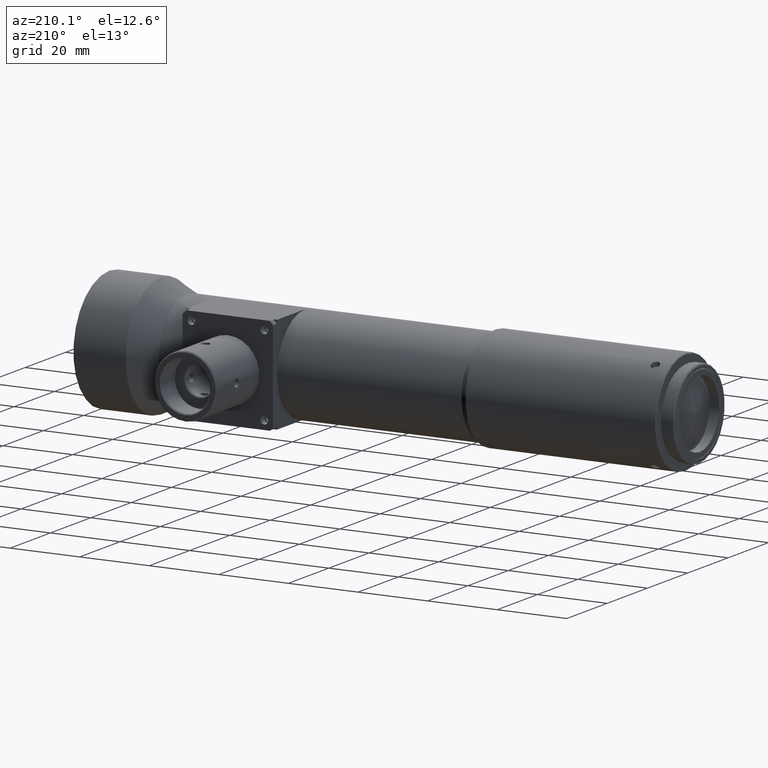
[diagram: clean part render]
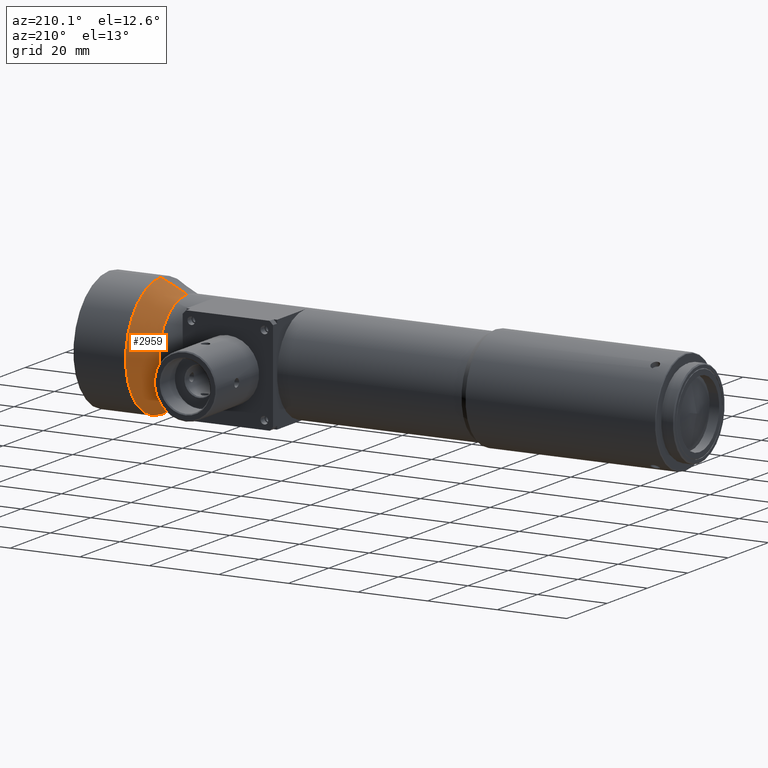
[diagram: same view with one face highlighted and labeled with its STEP entity id]
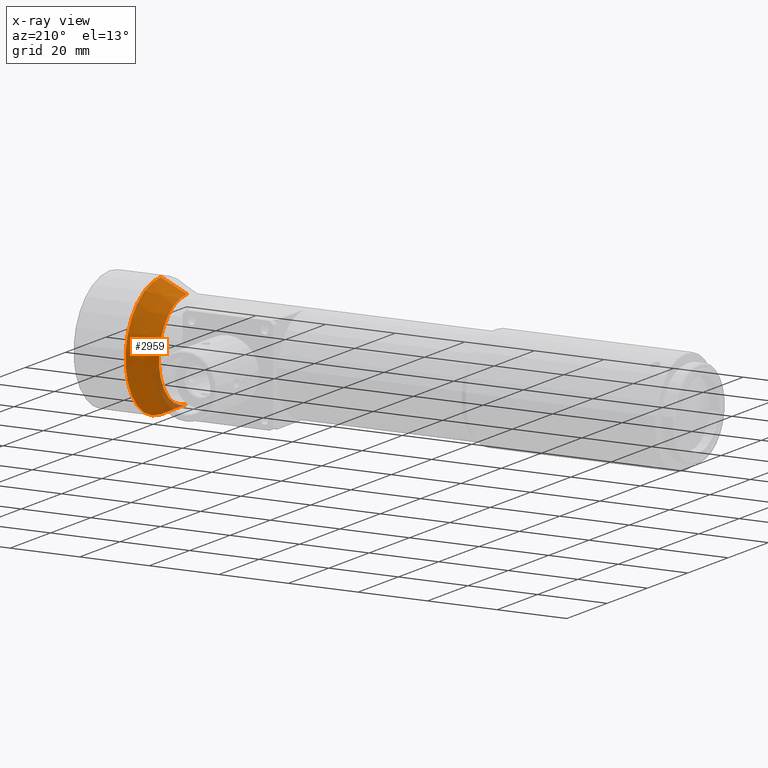
[diagram: x-ray of the same camera — body ghosted, the highlighted face saturated]
A machine part, auxiliary view. The second image highlights one B-rep face of the part: STEP entity #2959.
The next image is the same camera in x-ray: the body ghosted, the highlighted face saturated — about 9% of this face is hidden behind the body in this view.
In plain terms, the highlighted conical surface has half-angle 25 deg.
Its self-contained STEP definition (entity closure, byte-faithful):
#134 = VERTEX_POINT ( 'NONE', #1971 ) ;
#296 = FACE_OUTER_BOUND ( 'NONE', #1357, .T. ) ;
#306 = CONICAL_SURFACE ( 'NONE', #485, 14.00000000000000000, 0.4363323129875321100 ) ;
#485 = AXIS2_PLACEMENT_3D ( 'NONE', #3058, #3322, #3308 ) ;
#591 = AXIS2_PLACEMENT_3D ( 'NONE', #3263, #3276, #3280 ) ;
#690 = EDGE_CURVE ( 'NONE', #3987, #3916, #1318, .T. ) ;
#691 = EDGE_CURVE ( 'NONE', #134, #3916, #1298, .T. ) ;
#806 = EDGE_CURVE ( 'NONE', #3977, #3987, #4100, .T. ) ;
#807 = EDGE_CURVE ( 'NONE', #3977, #134, #1176, .T. ) ;
#851 = AXIS2_PLACEMENT_3D ( 'NONE', #2080, #2078, #2077 ) ;
#1176 = LINE ( 'NONE', #3216, #1182 ) ;
#1182 = VECTOR ( 'NONE', #3220, 1000.000000000000000 ) ;
#1298 = CIRCLE ( 'NONE', #851, 17.50000000000000000 ) ;
#1318 = LINE ( 'NONE', #2100, #1323 ) ;
#1323 = VECTOR ( 'NONE', #2093, 1000.000000000000000 ) ;
#1357 = EDGE_LOOP ( 'NONE', ( #1493, #1500, #1469, #1478 ) ) ;
#1469 = ORIENTED_EDGE ( 'NONE', *, *, #691, .T. ) ;
#1478 = ORIENTED_EDGE ( 'NONE', *, *, #690, .F. ) ;
#1493 = ORIENTED_EDGE ( 'NONE', *, *, #806, .F. ) ;
#1500 = ORIENTED_EDGE ( 'NONE', *, *, #807, .T. ) ;
#1971 = CARTESIAN_POINT ( 'NONE',  ( 17.80577422200000000, 0.0000000000000000000, 17.50000000000000000 ) ) ;
#2077 = DIRECTION ( 'NONE',  ( 0.0000000000000000000, 0.0000000000000000000, 1.000000000000000000 ) ) ;
#2078 = DIRECTION ( 'NONE',  ( -1.000000000000000000, 0.0000000000000000000, 0.0000000000000000000 ) ) ;
#2080 = CARTESIAN_POINT ( 'NONE',  ( 17.80577422200000000, 0.0000000000000000000, 0.0000000000000000000 ) ) ;
#2093 = DIRECTION ( 'NONE',  ( 0.9063077870413199800, 0.0000000000000000000, -0.4226182617306845100 ) ) ;
#2100 = CARTESIAN_POINT ( 'NONE',  ( 10.30000000000000100, 0.0000000000000000000, -14.00000000000000000 ) ) ;
#2959 = ADVANCED_FACE ( 'NONE', ( #296 ), #306, .T. ) ;
#3058 = CARTESIAN_POINT ( 'NONE',  ( 10.30000000000000100, 0.0000000000000000000, 0.0000000000000000000 ) ) ;
#3059 = CARTESIAN_POINT ( 'NONE',  ( 17.80577422200000000, 2.143131898507868200E-015, -17.50000000000000000 ) ) ;
#3117 = CARTESIAN_POINT ( 'NONE',  ( 10.29999999999997600, 1.928818708657081700E-015, 14.00000000000000000 ) ) ;
#3145 = CARTESIAN_POINT ( 'NONE',  ( 10.30000000000000100, 0.0000000000000000000, -14.00000000000000000 ) ) ;
#3216 = CARTESIAN_POINT ( 'NONE',  ( 10.30000000000000100, 1.714505518806294600E-015, 14.00000000000000000 ) ) ;
#3220 = DIRECTION ( 'NONE',  ( 0.9063077870413199800, 5.175581014897010600E-017, 0.4226182617306845100 ) ) ;
#3263 = CARTESIAN_POINT ( 'NONE',  ( 10.29999999999997600, 0.0000000000000000000, 0.0000000000000000000 ) ) ;
#3276 = DIRECTION ( 'NONE',  ( -1.000000000000000000, -0.0000000000000000000, -0.0000000000000000000 ) ) ;
#3280 = DIRECTION ( 'NONE',  ( 1.734723475976807100E-015, 0.0000000000000000000, -1.000000000000000000 ) ) ;
#3308 = DIRECTION ( 'NONE',  ( 0.0000000000000000000, 0.0000000000000000000, -1.000000000000000000 ) ) ;
#3322 = DIRECTION ( 'NONE',  ( 1.000000000000000000, 0.0000000000000000000, 0.0000000000000000000 ) ) ;
#3916 = VERTEX_POINT ( 'NONE', #3059 ) ;
#3977 = VERTEX_POINT ( 'NONE', #3117 ) ;
#3987 = VERTEX_POINT ( 'NONE', #3145 ) ;
#4100 = CIRCLE ( 'NONE', #591, 14.00000000000000000 ) ;